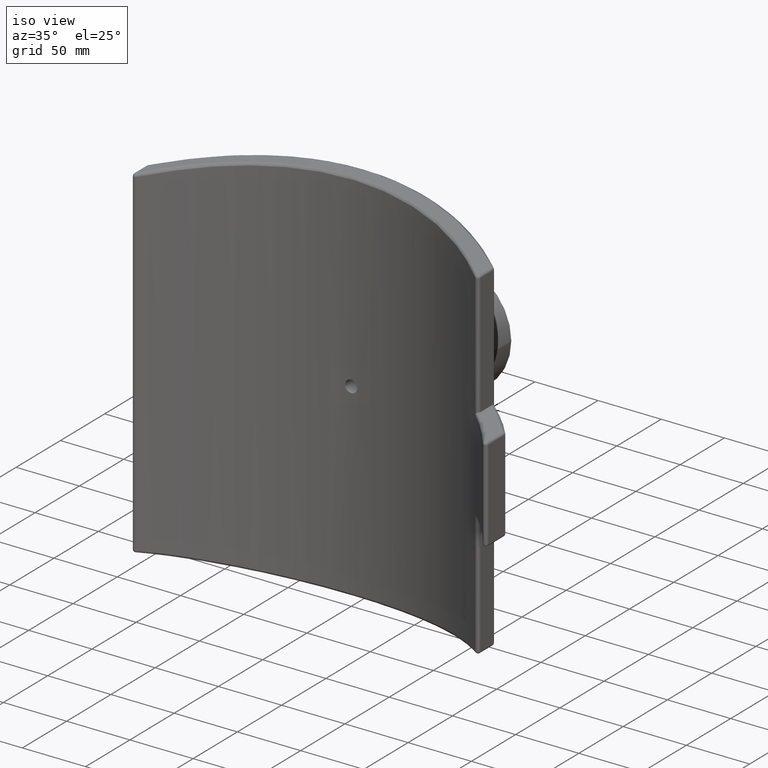
[diagram: clean part render]
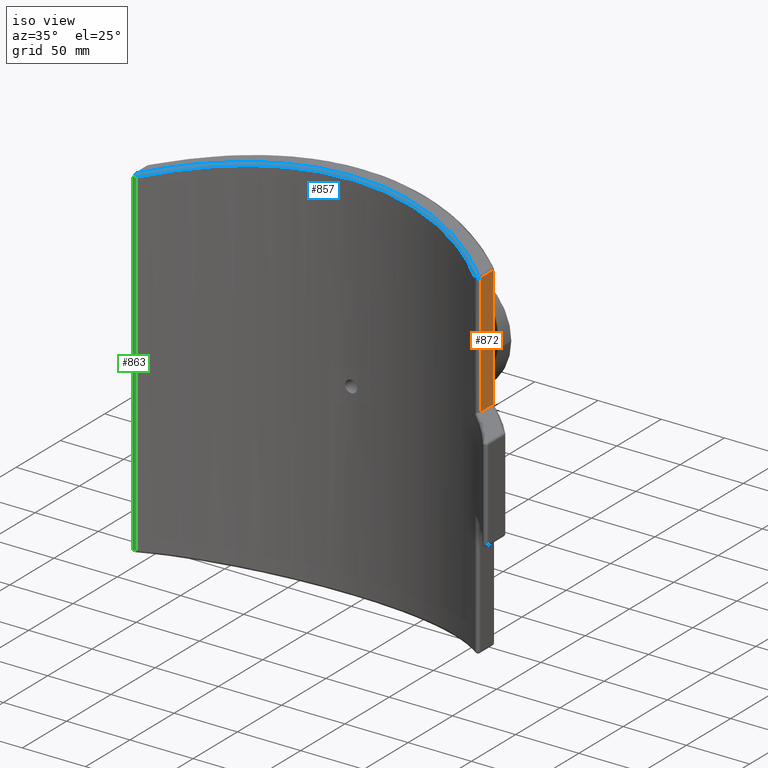
[diagram: same view with three faces highlighted in distinct colors, each labeled with its STEP entity id]
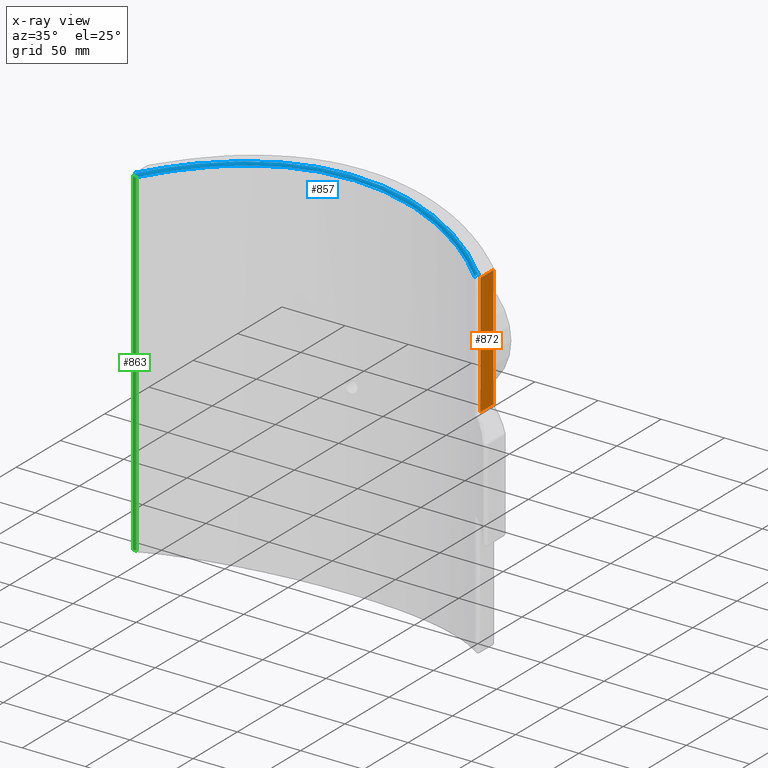
[diagram: x-ray of the same camera — body ghosted, the three highlighted faces saturated]
A machine part, iso view with three faces highlighted in distinct colors.
The next image is the same camera in x-ray (body ghosted, the three faces saturated) — at least one of them is partly hidden behind the body in this view.
Their STEP definitions:

[orange] entity #872 — the highlighted planar face has unit normal (1, 0, 0).
#40=LINE('',#2043,#70);
#42=LINE('',#2064,#72);
#44=LINE('',#2068,#74);
#57=LINE('',#2213,#87);
#70=VECTOR('',#1209,95.8920048770969);
#72=VECTOR('',#1221,14.5110746154759);
#74=VECTOR('',#1225,96.3515375358321);
#87=VECTOR('',#1268,12.8466166978308);
#111=B_SPLINE_CURVE_WITH_KNOTS('',3,(#2106,#2107,#2108,#2109,#2110,#2111),
 .UNSPECIFIED.,.F.,.F.,(4,2,4),(-1.19476626613483,-1.13536285389705,-1.0303794857088),
 .UNSPECIFIED.);
#150=PLANE('',#998);
#235=FACE_OUTER_BOUND('',#322,.T.);
#322=EDGE_LOOP('',(#763,#764,#765,#766,#767));
#451=VERTEX_POINT('',#1876);
#457=VERTEX_POINT('',#1956);
#459=VERTEX_POINT('',#2042);
#462=VERTEX_POINT('',#2067);
#465=VERTEX_POINT('',#2104);
#548=EDGE_CURVE('',#459,#457,#40,.T.);
#554=EDGE_CURVE('',#457,#451,#42,.T.);
#556=EDGE_CURVE('',#451,#462,#44,.T.);
#568=EDGE_CURVE('',#462,#465,#111,.T.);
#580=EDGE_CURVE('',#459,#465,#57,.T.);
#763=ORIENTED_EDGE('',*,*,#556,.F.);
#764=ORIENTED_EDGE('',*,*,#554,.F.);
#765=ORIENTED_EDGE('',*,*,#548,.F.);
#766=ORIENTED_EDGE('',*,*,#580,.T.);
#767=ORIENTED_EDGE('',*,*,#568,.F.);
#872=ADVANCED_FACE('',(#235),#150,.T.);
#998=AXIS2_PLACEMENT_3D('',#2212,#1266,#1267);
#1209=DIRECTION('',(0.,0.,1.));
#1221=DIRECTION('',(0.,1.,0.));
#1225=DIRECTION('',(0.,0.,-1.));
#1266=DIRECTION('center_axis',(1.,0.,0.));
#1267=DIRECTION('ref_axis',(0.,1.,0.));
#1268=DIRECTION('',(0.,1.,0.));
#1876=CARTESIAN_POINT('',(137.25,164.549194771655,133.392004877097));
#1956=CARTESIAN_POINT('',(137.25,150.038120156179,133.392004877097));
#2042=CARTESIAN_POINT('',(137.25,150.038120156179,37.5));
#2043=CARTESIAN_POINT('',(137.25,150.038120156179,0.));
#2064=CARTESIAN_POINT('',(137.25,0.,133.392004877097));
#2067=CARTESIAN_POINT('',(137.25,164.549194771655,37.0404673412648));
#2068=CARTESIAN_POINT('',(137.25,164.549194771655,0.));
#2104=CARTESIAN_POINT('',(137.25,162.88473685401,37.5));
#2106=CARTESIAN_POINT('Ctrl Pts',(137.25,164.549194771652,37.0404673412666));
#2107=CARTESIAN_POINT('Ctrl Pts',(137.25,164.368245943331,37.1555248492742));
#2108=CARTESIAN_POINT('Ctrl Pts',(137.25,164.165752159975,37.2499010546381));
#2109=CARTESIAN_POINT('Ctrl Pts',(137.25,163.649187455461,37.4327031675438));
#2110=CARTESIAN_POINT('Ctrl Pts',(137.25,163.234681414637,37.5));
#2111=CARTESIAN_POINT('Ctrl Pts',(137.25,162.88473685401,37.5));
#2212=CARTESIAN_POINT('Origin',(137.25,145.473150443647,0.));
#2213=CARTESIAN_POINT('',(137.25,141.631632000128,37.5));

[blue] entity #857 — the highlighted face is a freeform B-spline surface patch.
#92=B_SPLINE_SURFACE_WITH_KNOTS('',3,3,((#1961,#1962,#1963,#1964,#1965,
#1966,#1967,#1968,#1969,#1970),(#1971,#1972,#1973,#1974,#1975,#1976,#1977,
#1978,#1979,#1980),(#1981,#1982,#1983,#1984,#1985,#1986,#1987,#1988,#1989,
#1990),(#1991,#1992,#1993,#1994,#1995,#1996,#1997,#1998,#1999,#2000),(#2001,
#2002,#2003,#2004,#2005,#2006,#2007,#2008,#2009,#2010),(#2011,#2012,#2013,
#2014,#2015,#2016,#2017,#2018,#2019,#2020)),.UNSPECIFIED.,.F.,.F.,.F.,(4,
1,1,4),(4,1,1,1,1,1,1,4),(0.,0.285714285714286,0.571428571428571,1.),(5.62901959477832,
9.88838150774072,14.1477434207031,18.4071053336655,22.6664672466279,26.9258291595903,
31.1851910725527,35.4445529855151),.UNSPECIFIED.);
#106=B_SPLINE_CURVE_WITH_KNOTS('',3,(#2021,#2022,#2023,#2024,#2025,#2026,
#2027,#2028,#2029,#2030),.UNSPECIFIED.,.F.,.F.,(4,1,1,1,1,1,1,4),(-35.4445529855151,
-31.1851910725527,-26.9258291595903,-22.6664672466279,-18.4071053336655,
-14.1477434207031,-9.88838150774072,-5.62901959477832),.UNSPECIFIED.);
#107=B_SPLINE_CURVE_WITH_KNOTS('',3,(#2031,#2032,#2033,#2034,#2035,#2036,
#2037,#2038,#2039,#2040),.UNSPECIFIED.,.F.,.F.,(4,1,1,1,1,1,1,4),(5.62901959484431,
9.88838150779185,14.1477434207394,18.4071053336869,22.6664672466345,26.925829159582,
31.1851910725295,35.4445529854771),.UNSPECIFIED.);
#220=FACE_OUTER_BOUND('',#307,.T.);
#307=EDGE_LOOP('',(#699,#700,#701,#702));
#378=CIRCLE('',#961,1.99999999999997);
#387=CIRCLE('',#975,1.99999999999997);
#448=VERTEX_POINT('',#1869);
#450=VERTEX_POINT('',#1872);
#456=VERTEX_POINT('',#1955);
#458=VERTEX_POINT('',#1958);
#530=EDGE_CURVE('',#450,#448,#378,.F.);
#544=EDGE_CURVE('',#458,#456,#387,.F.);
#546=EDGE_CURVE('',#448,#458,#106,.T.);
#547=EDGE_CURVE('',#456,#450,#107,.T.);
#699=ORIENTED_EDGE('',*,*,#530,.T.);
#700=ORIENTED_EDGE('',*,*,#546,.T.);
#701=ORIENTED_EDGE('',*,*,#544,.T.);
#702=ORIENTED_EDGE('',*,*,#547,.T.);
#857=ADVANCED_FACE('',(#220),#92,.F.);
#961=AXIS2_PLACEMENT_3D('',#1873,#1171,#1172);
#975=AXIS2_PLACEMENT_3D('',#1959,#1203,#1204);
#1171=DIRECTION('center_axis',(-0.733164606172306,-0.660902128207664,-0.160243680645407));
#1172=DIRECTION('ref_axis',(-0.213523833955914,0.,0.976937854898032));
#1203=DIRECTION('center_axis',(0.733164606013992,-0.660902128473588,-0.160243680272979));
#1204=DIRECTION('ref_axis',(-0.669554455445553,-0.742762971070186,0.));
#1869=CARTESIAN_POINT('',(-133.910891089109,148.552594214039,133.392004877097));
#1872=CARTESIAN_POINT('',(-135.677047667913,150.038120156738,135.345880586893));
#1873=CARTESIAN_POINT('Origin',(-135.249999999555,150.03812015658,133.392004877194));
#1955=CARTESIAN_POINT('',(135.677047667428,150.038120156615,135.345880586999));
#1958=CARTESIAN_POINT('',(133.910891089109,148.552594214039,133.392004877097));
#1959=CARTESIAN_POINT('Origin',(135.25,150.038120156179,133.392004877097));
#1961=CARTESIAN_POINT('Ctrl Pts',(135.677047667913,150.038120156179,135.345880586893));
#1962=CARTESIAN_POINT('Ctrl Pts',(125.234803078292,159.421524046993,137.628183487441));
#1963=CARTESIAN_POINT('Ctrl Pts',(102.368545638348,176.033588476469,142.070115242369));
#1964=CARTESIAN_POINT('Ctrl Pts',(63.4404818662849,193.413576810373,147.266424298659));
#1965=CARTESIAN_POINT('Ctrl Pts',(21.4962169969167,202.373410710739,150.118851007305));
#1966=CARTESIAN_POINT('Ctrl Pts',(-21.4959207078474,202.371870863032,150.11747830854));
#1967=CARTESIAN_POINT('Ctrl Pts',(-63.4408506636497,193.414865691707,147.267554194443));
#1968=CARTESIAN_POINT('Ctrl Pts',(-102.368789816726,176.032600149156,142.069382741749));
#1969=CARTESIAN_POINT('Ctrl Pts',(-125.234981340637,159.421363860402,137.628144525639));
#1970=CARTESIAN_POINT('Ctrl Pts',(-135.677047667922,150.038120156171,135.345880586891));
#1971=CARTESIAN_POINT('Ctrl Pts',(135.466223747786,149.79307261536,135.39195919004));
#1972=CARTESIAN_POINT('Ctrl Pts',(125.042066373219,159.165115673108,137.66657321619));
#1973=CARTESIAN_POINT('Ctrl Pts',(102.213827574512,175.75882298581,142.094148706054));
#1974=CARTESIAN_POINT('Ctrl Pts',(63.3462734883247,193.121986905845,147.27451591786));
#1975=CARTESIAN_POINT('Ctrl Pts',(21.464586344003,202.073880860785,150.118495393355));
#1976=CARTESIAN_POINT('Ctrl Pts',(-21.4642900187345,202.072338110463,150.117131398075));
#1977=CARTESIAN_POINT('Ctrl Pts',(-63.3466428161991,193.123278087263,147.27563854636));
#1978=CARTESIAN_POINT('Ctrl Pts',(-102.214069958902,175.757833769964,142.093418740732));
#1979=CARTESIAN_POINT('Ctrl Pts',(-125.042244326792,159.164955680461,137.666534385647));
#1980=CARTESIAN_POINT('Ctrl Pts',(-135.466223747795,149.793072615352,135.391959190038));
#1981=CARTESIAN_POINT('Ctrl Pts',(135.010572410694,149.303993064092,135.32435142809));
#1982=CARTESIAN_POINT('Ctrl Pts',(124.626140023173,158.653317394397,137.587294717861));
#1983=CARTESIAN_POINT('Ctrl Pts',(101.88081813863,175.210289743969,141.993123095802));
#1984=CARTESIAN_POINT('Ctrl Pts',(63.1442038635323,192.539758337245,147.149727604033));
#1985=CARTESIAN_POINT('Ctrl Pts',(21.3968452965855,201.475740980187,149.981202323462));
#1986=CARTESIAN_POINT('Ctrl Pts',(-21.3965503188491,201.474190476697,149.97983971421));
#1987=CARTESIAN_POINT('Ctrl Pts',(-63.1445749454486,192.541055101045,147.150848449706));
#1988=CARTESIAN_POINT('Ctrl Pts',(-101.881065755506,175.209299044657,141.992396273576));
#1989=CARTESIAN_POINT('Ctrl Pts',(-124.62631729859,158.653157789587,137.587256086552));
#1990=CARTESIAN_POINT('Ctrl Pts',(-135.010572410703,149.303993064084,135.324351428088));
#1991=CARTESIAN_POINT('Ctrl Pts',(134.276680867948,148.646843249766,134.676890059353));
#1992=CARTESIAN_POINT('Ctrl Pts',(123.953389435953,157.960627327435,136.936142708231));
#1993=CARTESIAN_POINT('Ctrl Pts',(101.338411135481,174.45724949742,141.335121512438));
#1994=CARTESIAN_POINT('Ctrl Pts',(62.8125996260237,191.727211233487,146.484222898994));
#1995=CARTESIAN_POINT('Ctrl Pts',(21.2853275186399,200.633663937944,149.311750254444));
#1996=CARTESIAN_POINT('Ctrl Pts',(-21.2850304352525,200.632115839363,149.310390528003));
#1997=CARTESIAN_POINT('Ctrl Pts',(-62.8129731353901,191.728507241331,146.485341358955));
#1998=CARTESIAN_POINT('Ctrl Pts',(-101.338642333052,174.456258904186,141.334395740537));
#1999=CARTESIAN_POINT('Ctrl Pts',(-123.953565667617,157.960468329342,136.936104139926));
#2000=CARTESIAN_POINT('Ctrl Pts',(-134.276680867957,148.646843249758,134.676890059351));
#2001=CARTESIAN_POINT('Ctrl Pts',(133.969187015907,148.500044074839,133.875462376056));
#2002=CARTESIAN_POINT('Ctrl Pts',(123.665007550454,157.796184239789,136.144482113502));
#2003=CARTESIAN_POINT('Ctrl Pts',(101.094899026683,174.257940962931,140.561457367451));
#2004=CARTESIAN_POINT('Ctrl Pts',(62.6575343805526,191.486568141245,145.72962486548));
#2005=CARTESIAN_POINT('Ctrl Pts',(21.231929553342,200.370250013673,148.567015303722));
#2006=CARTESIAN_POINT('Ctrl Pts',(-21.2316426427566,200.368697886691,148.565662514953));
#2007=CARTESIAN_POINT('Ctrl Pts',(-62.6579032199466,191.487860840212,145.730737887673));
#2008=CARTESIAN_POINT('Ctrl Pts',(-101.095178953505,174.256959890338,140.560729979536));
#2009=CARTESIAN_POINT('Ctrl Pts',(-123.665183455852,157.7960255429,136.14444337846));
#2010=CARTESIAN_POINT('Ctrl Pts',(-133.969187015917,148.500044074831,133.875462376054));
#2011=CARTESIAN_POINT('Ctrl Pts',(133.910891089109,148.552594214039,133.392004877097));
#2012=CARTESIAN_POINT('Ctrl Pts',(123.604576926162,157.843093115834,135.667124159281));
#2013=CARTESIAN_POINT('Ctrl Pts',(101.035977724692,174.29068165987,140.095074797805));
#2014=CARTESIAN_POINT('Ctrl Pts',(62.6146544596855,191.49859090136,145.275028312001));
#2015=CARTESIAN_POINT('Ctrl Pts',(21.2163930641213,200.369713574989,148.118476920115));
#2016=CARTESIAN_POINT('Ctrl Pts',(-21.2161006319526,200.368188973299,148.117108541962));
#2017=CARTESIAN_POINT('Ctrl Pts',(-62.6150184562832,191.499867021492,145.276154651404));
#2018=CARTESIAN_POINT('Ctrl Pts',(-101.036218724514,174.289703117976,140.094344602753));
#2019=CARTESIAN_POINT('Ctrl Pts',(-123.604752868002,157.842934515249,135.667085320113));
#2020=CARTESIAN_POINT('Ctrl Pts',(-133.910891089118,148.552594214031,133.392004877095));
#2021=CARTESIAN_POINT('Ctrl Pts',(-133.910891089118,148.552594214031,133.392004877095));
#2022=CARTESIAN_POINT('Ctrl Pts',(-123.604752868002,157.842934515249,135.667085320113));
#2023=CARTESIAN_POINT('Ctrl Pts',(-101.036218724514,174.289703117976,140.094344602753));
#2024=CARTESIAN_POINT('Ctrl Pts',(-62.6150184562832,191.499867021492,145.276154651404));
#2025=CARTESIAN_POINT('Ctrl Pts',(-21.2161006319526,200.368188973299,148.117108541962));
#2026=CARTESIAN_POINT('Ctrl Pts',(21.2163930641213,200.369713574989,148.118476920115));
#2027=CARTESIAN_POINT('Ctrl Pts',(62.6146544596855,191.49859090136,145.275028312001));
#2028=CARTESIAN_POINT('Ctrl Pts',(101.035977724692,174.29068165987,140.095074797805));
#2029=CARTESIAN_POINT('Ctrl Pts',(123.604576926162,157.843093115834,135.667124159281));
#2030=CARTESIAN_POINT('Ctrl Pts',(133.910891089109,148.552594214039,133.392004877097));
#2031=CARTESIAN_POINT('Ctrl Pts',(135.677047667428,150.038120156615,135.345880586999));
#2032=CARTESIAN_POINT('Ctrl Pts',(125.234803077776,159.421524047396,137.628183487545));
#2033=CARTESIAN_POINT('Ctrl Pts',(102.368545638348,176.033588476469,142.070115242369));
#2034=CARTESIAN_POINT('Ctrl Pts',(63.4404818662849,193.413576810373,147.266424298659));
#2035=CARTESIAN_POINT('Ctrl Pts',(21.4962169969167,202.373410710739,150.118851007305));
#2036=CARTESIAN_POINT('Ctrl Pts',(-21.4959207078474,202.371870863032,150.11747830854));
#2037=CARTESIAN_POINT('Ctrl Pts',(-63.4408506636497,193.414865691707,147.267554194443));
#2038=CARTESIAN_POINT('Ctrl Pts',(-102.368789816726,176.032600149156,142.069382741749));
#2039=CARTESIAN_POINT('Ctrl Pts',(-125.234981340339,159.421363860634,137.628144525699));
#2040=CARTESIAN_POINT('Ctrl Pts',(-135.677047667642,150.038120156422,135.345880586952));

[green] entity #863 — the highlighted cylindrical surface (edge-blend (fillet) strip) has radius 2 mm, axis along (0, 0, 1).
#47=LINE('',#2081,#77);
#48=LINE('',#2082,#78);
#77=VECTOR('',#1232,266.784009754194);
#78=VECTOR('',#1233,266.784009754194);
#133=CYLINDRICAL_SURFACE('',#985,2.);
#226=FACE_OUTER_BOUND('',#313,.T.);
#313=EDGE_LOOP('',(#724,#725,#726,#727));
#366=CIRCLE('',#943,1.99999999999998);
#377=CIRCLE('',#960,2.);
#438=VERTEX_POINT('',#1839);
#440=VERTEX_POINT('',#1842);
#448=VERTEX_POINT('',#1869);
#449=VERTEX_POINT('',#1870);
#516=EDGE_CURVE('',#440,#438,#366,.F.);
#529=EDGE_CURVE('',#448,#449,#377,.F.);
#560=EDGE_CURVE('',#449,#440,#47,.T.);
#561=EDGE_CURVE('',#438,#448,#48,.T.);
#724=ORIENTED_EDGE('',*,*,#529,.T.);
#725=ORIENTED_EDGE('',*,*,#560,.T.);
#726=ORIENTED_EDGE('',*,*,#516,.T.);
#727=ORIENTED_EDGE('',*,*,#561,.T.);
#863=ADVANCED_FACE('',(#226),#133,.T.);
#943=AXIS2_PLACEMENT_3D('',#1843,#1133,#1134);
#960=AXIS2_PLACEMENT_3D('',#1871,#1169,#1170);
#985=AXIS2_PLACEMENT_3D('',#2080,#1230,#1231);
#1133=DIRECTION('center_axis',(0.,5.9788819198971E-14,-1.));
#1134=DIRECTION('ref_axis',(-1.,0.,0.));
#1169=DIRECTION('center_axis',(-5.32907051820082E-14,-4.80382443365994E-14,
1.));
#1170=DIRECTION('ref_axis',(0.669554455445544,-0.742762971070194,0.));
#1230=DIRECTION('center_axis',(0.,0.,1.));
#1231=DIRECTION('ref_axis',(-0.406476041455351,-0.913661440426807,0.));
#1232=DIRECTION('',(0.,0.,-1.));
#1233=DIRECTION('',(0.,0.,1.));
#1839=CARTESIAN_POINT('',(-133.910891089109,148.552594214039,-133.392004877097));
#1842=CARTESIAN_POINT('',(-137.25,150.038120156179,-133.392004877097));
#1843=CARTESIAN_POINT('Origin',(-135.25,150.038120156179,-133.392004877097));
#1869=CARTESIAN_POINT('',(-133.910891089109,148.552594214039,133.392004877097));
#1870=CARTESIAN_POINT('',(-137.25,150.038120156179,133.392004877097));
#1871=CARTESIAN_POINT('Origin',(-135.25,150.038120156179,133.392004877097));
#2080=CARTESIAN_POINT('Origin',(-135.25,150.038120156179,0.));
#2081=CARTESIAN_POINT('',(-137.25,150.038120156179,0.));
#2082=CARTESIAN_POINT('',(-133.910891089109,148.552594214039,0.));